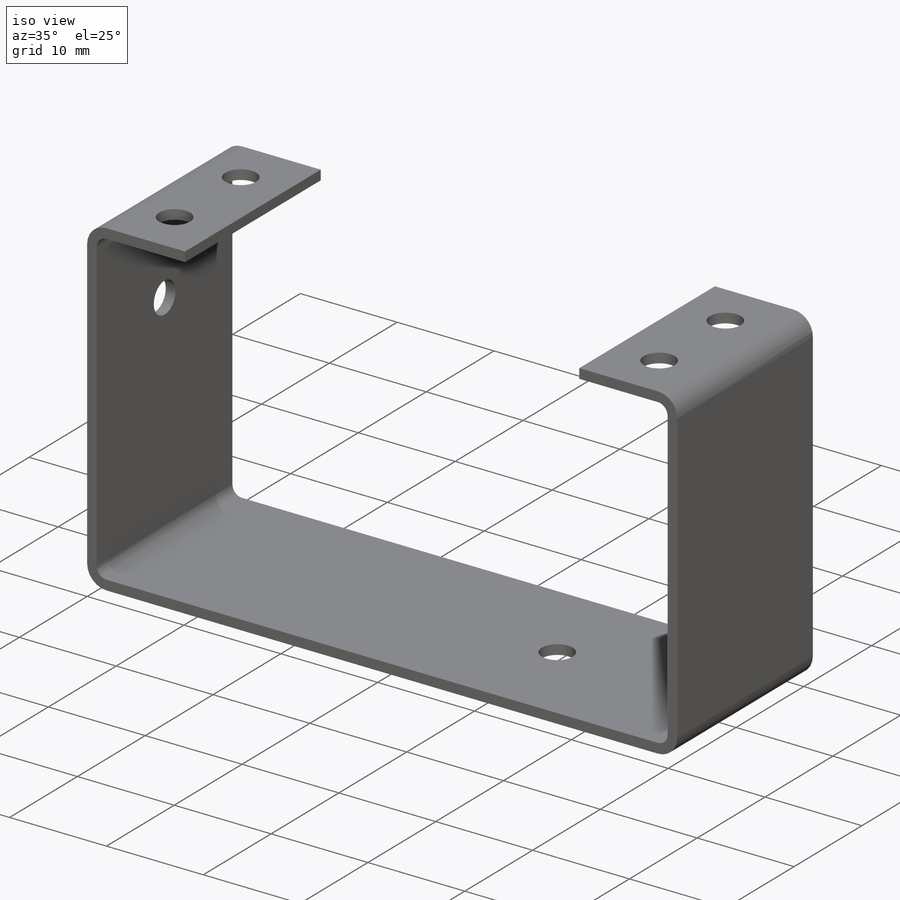
[diagram: iso view]
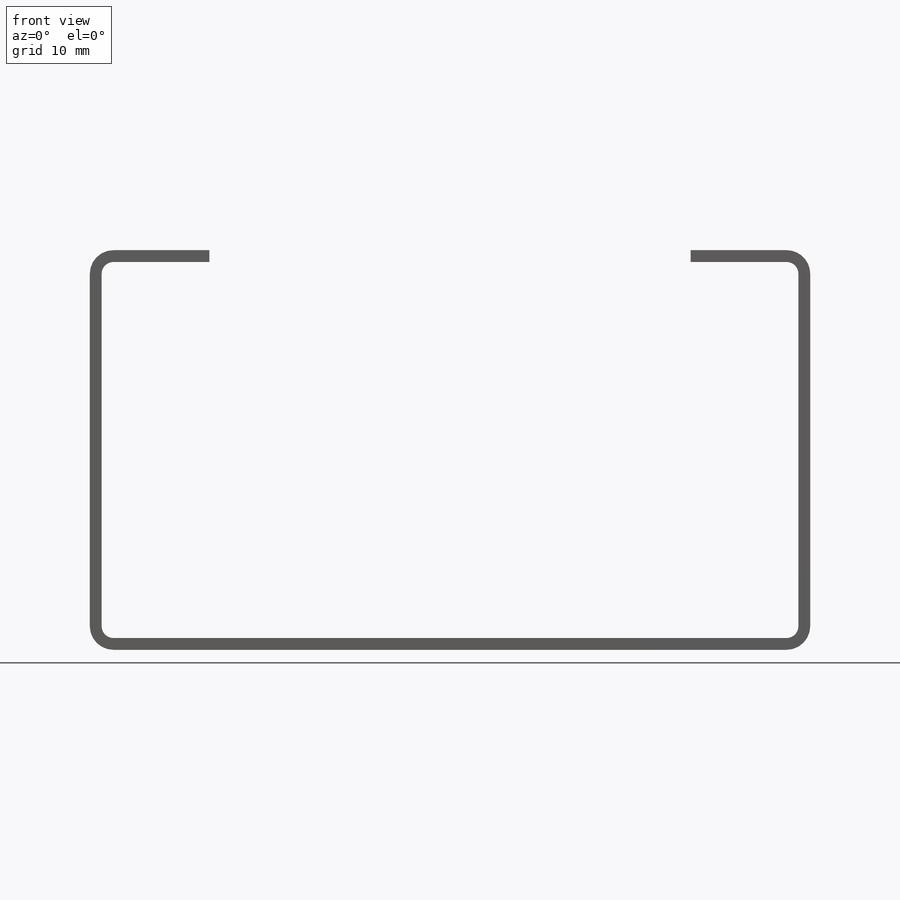
[diagram: front view]
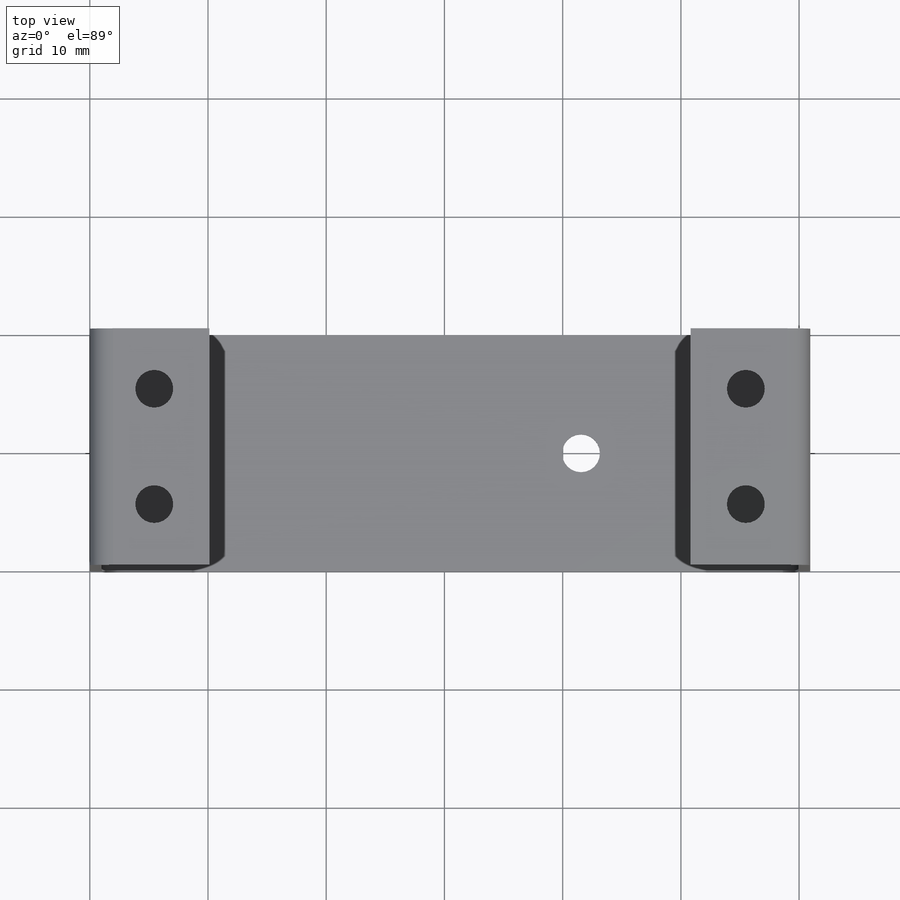
[diagram: top view]
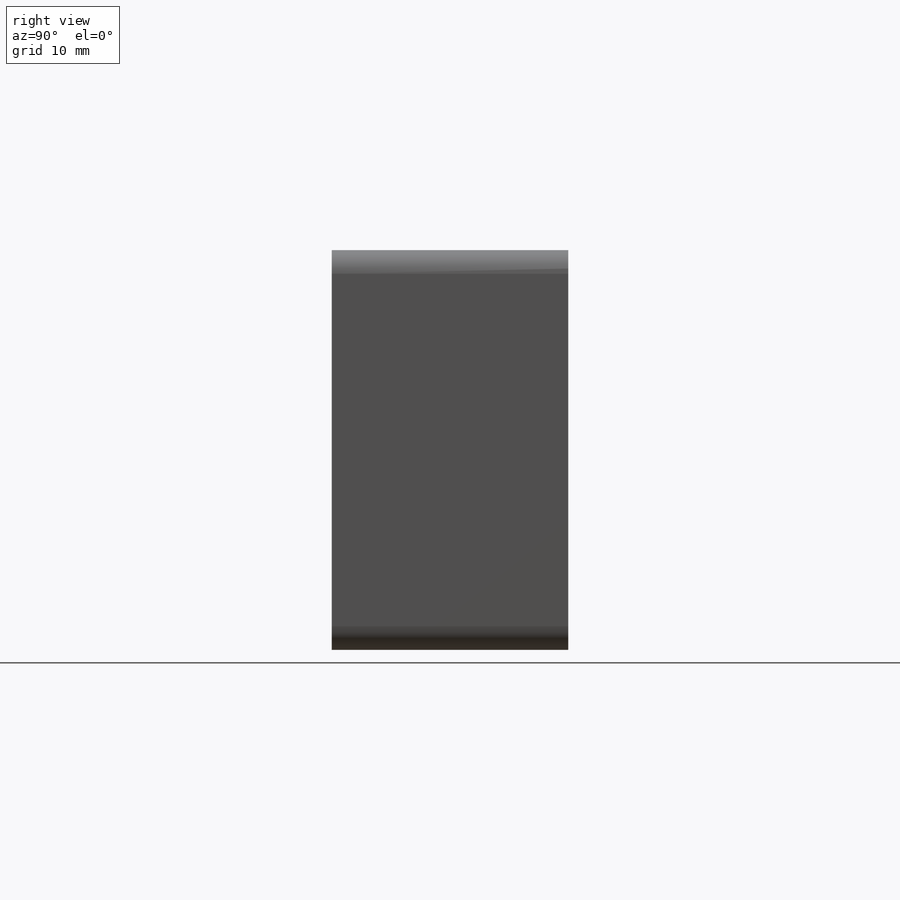
[diagram: right view]
SOLIDWORKS PART (.sldprt)
format: sldprt  version: not decoded by parser v0  size: 349,696 bytes
history: native  units: mm
features: sketch x17, cut_extrude x6, extrude x5, plane x3, material x1, sheet_metal_op x1 + 7 further entries (+8 scaffold rows collapsed)
feature tree (48):
  scaffold x8  (default folders/planes/origin — collapsed)
  material  "材料 <指定なし>"
  "ｻｰﾌｪｽ ﾎﾞﾃﾞｨ"
  "ｿﾘｯﾄﾞ ﾎﾞﾃﾞｨ"
  plane  "正面"
  plane  "平面"
  plane  "右側面"
  sketch  "ｽｹｯﾁ2"
  extrude  "ﾎﾞｽ - 押し出し1"  [1 undecoded]
  sketch  "ｽｹｯﾁ3"
  extrude  "ﾎﾞｽ - 押し出し2"  Depth=32.81mm
  sketch  "ｽｹｯﾁ4"
  extrude  "ﾎﾞｽ - 押し出し3"  Depth=32.81mm
  sketch  "ｽｹｯﾁ9"
  extrude  "ﾎﾞｽ - 押し出し8"  Depth=9.12mm
  sketch  "ｽｹｯﾁ10"
  extrude  "ﾎﾞｽ - 押し出し9"  Depth=9.12mm
  sketch  "ｽｹｯﾁ13"  dims[D1=1.5mm]
  cut_extrude  "ｶｯﾄ - 押し出し2"  [1 undecoded]
  sketch  "ｽｹｯﾁ14"  dims[D1=1.5mm]
  cut_extrude  "ｶｯﾄ - 押し出し3"  [1 undecoded]
  sketch  "ｽｹｯﾁ15"  dims[D1=1.5mm]
  cut_extrude  "ｶｯﾄ - 押し出し4"  [1 undecoded]
  sketch  "ｽｹｯﾁ16"  dims[D1=1.5mm]
  cut_extrude  "ｶｯﾄ - 押し出し5"  [1 undecoded]
  sketch  "ｽｹｯﾁ17"  dims[D1=20.0mm]
  cut_extrude  "ｶｯﾄ - 押し出し6"  [1 undecoded]
  sketch  "ｽｹｯﾁ18"  dims[D1=~2.34488mm]
  cut_extrude  "ｶｯﾄ - 押し出し7"  Depth=1mm
  sketch  "ﾍﾞﾝﾄﾞ ｽｹｯﾁ1"  dims[c1.D1=0.0mm c1.D4=90.0deg c1.D5=4.0 c1.ﾍﾞﾝﾄﾞ2=0.0 c2.D1=0.0mm c2.D4=90.0deg c2.D5=3.0 c2.ﾍﾞﾝﾄﾞ3=0.0 c3.D1=0.0mm c3.D4=90.0deg c3.D5=2.0 c3.ﾍﾞﾝﾄﾞ4=0.0 c4.D1=0.0mm c4.D4=90.0deg c4.D5=1.0 c5.D1=0.0mm]
  sketch  "ﾌﾗｯﾄ ｽｹｯﾁ1"  dims[D1=0.0mm]
  sketch  "ﾍﾞﾝﾄﾞ-ﾗｲﾝ1"
  sketch  "境界ﾎﾞｯｸｽ1"
  sheet_metal_op  "板金17"
  "ﾌﾗｯﾄ-ﾊﾟﾀｰﾝ17"
  sketch  "ﾍﾞﾝﾄﾞ-ﾗｲﾝ2"
  sketch  "境界ﾎﾞｯｸｽ2"
  "ｽｹｯﾁ変換1"
  "ﾌﾗｯﾄ-<ﾍﾞﾝﾄﾞ2>1"
  "ﾌﾗｯﾄ-<ﾍﾞﾝﾄﾞ3>1"
  "ﾌﾗｯﾄ-<ﾍﾞﾝﾄﾞ4>1"
decode coverage: 13 of 29 modeling features carry decoded parameters; 7 rows unclassified (native names shown)
note: ~ marks probable driven/reference dimensions
note: 6 parameter values undecoded
summary: no parameter record found for 6 features
note: suppression state not decoded; provenance and decode notes live in map.json
